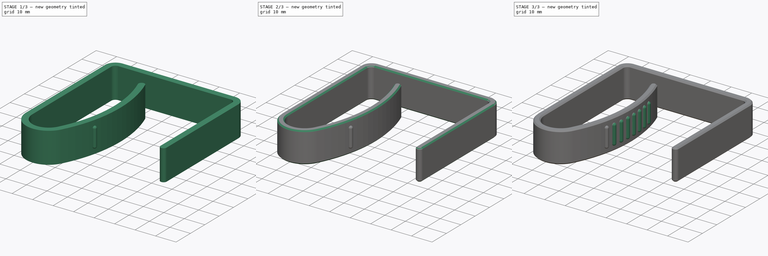
[diagram: build sequence overview — one tinted view per stage of 3, left to right]
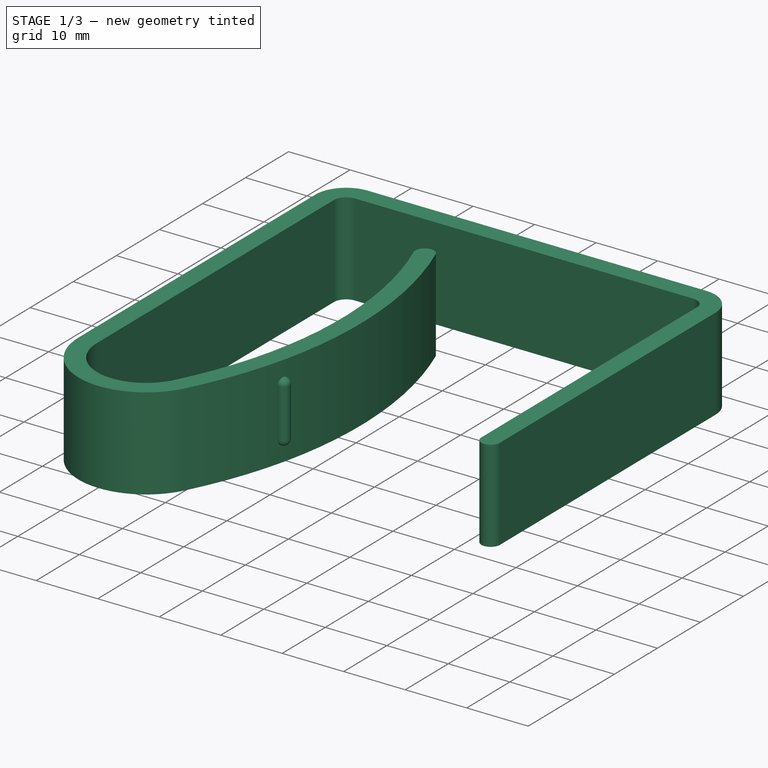
[diagram: stage 1 of 3 — iso view after this stage's code; geometry added in this stage tinted green]
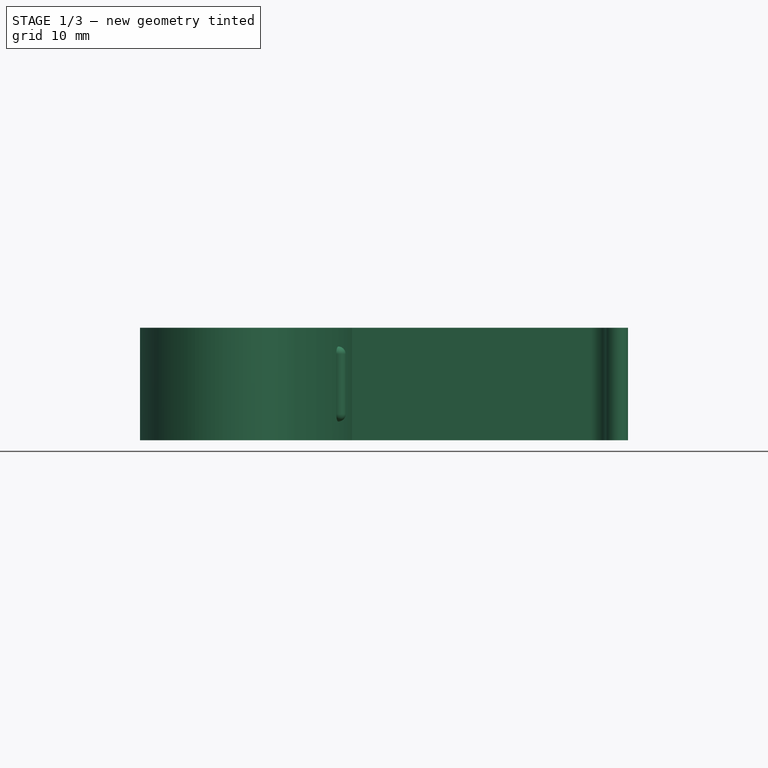
[diagram: stage 1 of 3 — front view after this stage's code; geometry added in this stage tinted green]
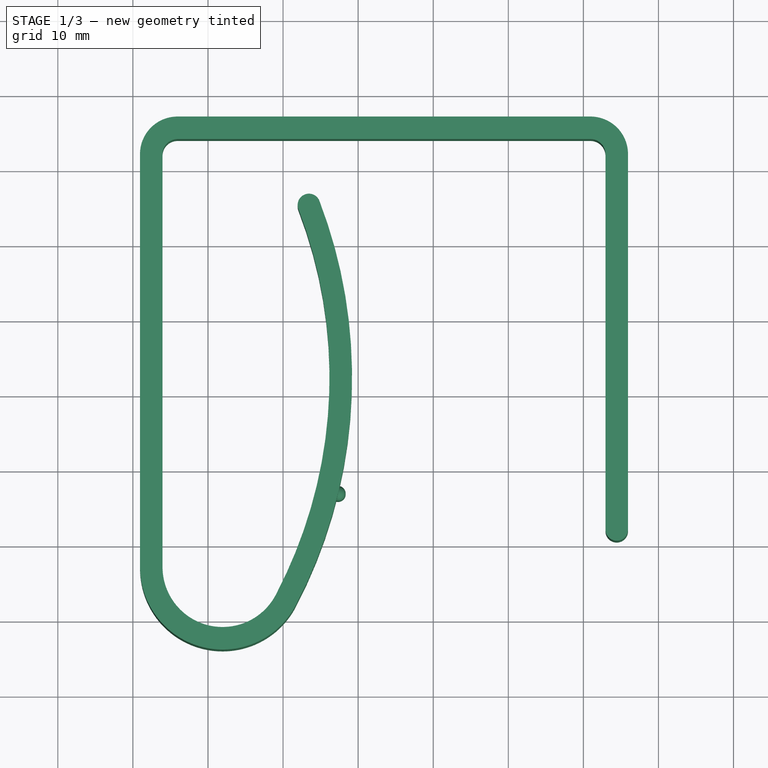
[diagram: stage 1 of 3 — top view after this stage's code; geometry added in this stage tinted green]
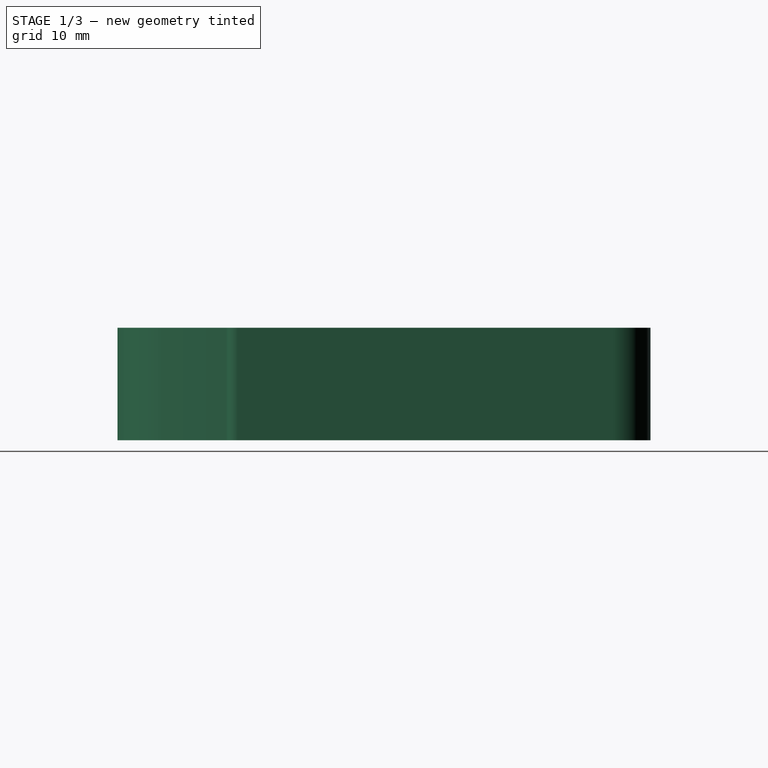
[diagram: stage 1 of 3 — right view after this stage's code; geometry added in this stage tinted green]
FCSTD DOCUMENT  (FreeCAD 1.1R38843 (Git))
Label: picnic table clips
License: All rights reserved
LicenseURL: http://en.wikipedia.org/wiki/All_rights_reserved
objects: Sketcher::SketchObject×3, PartDesign::Plane×1, PartDesign::Revolution×1, Part::FeaturePython×1, PartDesign::Pad×1, PartDesign::Chamfer×1, PartDesign::Body×1, Part::MultiFuse×1
note: 19 computed .brp shape members not serialized (recipe doc carries the construction recipe); baked Part::Feature solids carry a one-line shape summary decoded from their .brp

FEATURE [Sketcher::SketchObject] Sketch006
  ArcFitTolerance = 0
  AttachmentSupport = -> [XY_Plane002]
  FullyConstrained = false
  MakeInternals = false
  MapMode = 5
  sketch-geometry (20):
    g0: LineSegment StartX=-14.0554 StartY=67.0629 StartZ=0 EndX=40.9446 EndY=67.0629 EndZ=0
    g1: LineSegment StartX=45.9446 StartY=62.0629 StartZ=0 EndX=45.9446 EndY=12.0629 EndZ=0
    g2: LineSegment StartX=42.9446 StartY=12.0629 StartZ=0 EndX=42.9446 EndY=62.0629 EndZ=0
    g3: LineSegment StartX=40.9446 StartY=64.0629 StartZ=0 EndX=-14.0554 EndY=64.0629 EndZ=0
    g4: LineSegment StartX=-16.0554 StartY=62.0629 StartZ=0 EndX=-16.0554 EndY=7.06291 EndZ=0
    g5: LineSegment StartX=-19.0554 StartY=7.06291 StartZ=0 EndX=-19.0554 EndY=62.0629 EndZ=0
    g6: ArcOfCircle CenterX=-8.05537 CenterY=7.06291 CenterZ=0 NormalX=0 NormalY=0 NormalZ=1 AngleXU=0 Radius=11 StartAngle=3.14159 EndAngle=5.79961
    g7: ArcOfCircle CenterX=-8.05537 CenterY=7.06291 CenterZ=0 NormalX=0 NormalY=0 NormalZ=1 AngleXU=0 Radius=8 StartAngle=3.14159 EndAngle=5.79961
    g8: ArcOfCircle CenterX=-56.2632 CenterY=32.3802 CenterZ=0 NormalX=0 NormalY=0 NormalZ=1 AngleXU=0 Radius=62.4515 StartAngle=5.79961 EndAngle=6.64955
    g9: ArcOfCircle CenterX=-56.2632 CenterY=32.3802 CenterZ=0 NormalX=0 NormalY=0 NormalZ=1 AngleXU=0 Radius=65.4515 StartAngle=5.79961 EndAngle=6.64955
    g10: ArcOfCircle CenterX=3.44417 CenterY=55.2891 CenterZ=0 NormalX=0 NormalY=0 NormalZ=1 AngleXU=0 Radius=1.5 StartAngle=0.366364 EndAngle=3.50796
    g11: ArcOfCircle CenterX=-14.0554 CenterY=62.0629 CenterZ=0 NormalX=0 NormalY=0 NormalZ=1 AngleXU=0 Radius=2 StartAngle=1.5708 EndAngle=3.14159
    g12: GeomPoint [constr] X=-16.0554 Y=64.0629 Z=0
    g13: ArcOfCircle CenterX=-14.0554 CenterY=62.0629 CenterZ=0 NormalX=0 NormalY=0 NormalZ=1 AngleXU=0 Radius=5 StartAngle=1.5708 EndAngle=3.14159
    g14: GeomPoint [constr] X=-19.0554 Y=67.0629 Z=0
    g15: ArcOfCircle CenterX=40.9446 CenterY=62.0629 CenterZ=0 NormalX=0 NormalY=0 NormalZ=1 AngleXU=0 Radius=5 StartAngle=0 EndAngle=1.5708
    g16: GeomPoint [constr] X=45.9446 Y=67.0629 Z=0
    g17: ArcOfCircle CenterX=40.9446 CenterY=62.0629 CenterZ=0 NormalX=0 NormalY=0 NormalZ=1 AngleXU=0 Radius=2 StartAngle=1.1e-15 EndAngle=1.5708
    g18: GeomPoint [constr] X=42.9446 Y=64.0629 Z=0
    g19: ArcOfCircle CenterX=44.4446 CenterY=12.0629 CenterZ=0 NormalX=0 NormalY=0 NormalZ=1 AngleXU=0 Radius=1.5 StartAngle=3.14159 EndAngle=6.28319
  constraints (42):
    c: Horizontal(g0)
    c: Vertical(g1)
    c: Vertical(g2)
    c: Horizontal(g3)
    c: Vertical(g4)
    c: Vertical(g5)
    c: DistanceY(g18,g16) = 3
    c: DistanceX(g2,g1) = 3
    c: DistanceX(g14,g12) = 3
    c: DistanceX(g14,g16) = 65
    c: DistanceY(g1,g16) = 55
    c: Tangent(g6,g5) = 1.5708
    c: Tangent(g7,g4) = -1.5708
    c: Coincident(g7,g6)
    c: Tangent(g8,g7) = -1.5708
    c: Tangent(g9,g6) = -1.5708
    c: Coincident(g8,g9)
    c: Tangent(g10,g9) = -1.5708
    c: Tangent(g10,g8) = 1.5708
    c: Radius(g7) = 8
    c: DistanceY(g5,g14) = 60
    c: PointOnObject(g12,g3)
    c: PointOnObject(g12,g4)
    c: Tangent(g3,g11) = -1.5708
    c: Tangent(g4,g11) = -1.5708
    c: PointOnObject(g14,g0)
    c: Tangent(g0,g13) = 1.5708
    c: Tangent(g5,g13) = 1.5708
    c: PointOnObject(g16,g0)
    c: PointOnObject(g16,g1)
    c: Tangent(g0,g15) = 1.5708
    c: Tangent(g1,g15) = 1.5708
    c: PointOnObject(g18,g2)
    c: Tangent(g2,g17) = -1.5708
    c: Tangent(g3,g17) = -1.5708
    c: Coincident(g15,g17)
    c: Coincident(g11,g13)
    c: Equal(g11,g17)
    c: Radius(g11) = 2
    c: DistanceX(g9,g2) = 38.1
    c: Tangent(g19,g2) = 1.5708
    c: Tangent(g19,g1) = 1.5708
FEATURE [Sketcher::SketchObject] Sketch
  ArcFitTolerance = 1e-06
  AttachmentSupport = -> [XY_Plane002]
  ExternalGeometry = -> [Sketch006]
  FullyConstrained = false
  MakeInternals = false
  MapMode = 5
  sketch-geometry (1):
    g0: ArcOfCircle CenterX=-56.2632 CenterY=32.3802 CenterZ=0 NormalX=0 NormalY=0 NormalZ=1 AngleXU=0 Radius=65.4515 StartAngle=6.04456 EndAngle=6.48061
  constraints (3):
    c: Coincident(g0,g-3)
    c: PointOnObject(g0,g-3)
    c: PointOnObject(g0,g-3)
FEATURE [PartDesign::Plane] DatumPlane
  AttachmentSupport = -> [Sketch]
  Length = 129.68
  MapMode = 7
  Placement = pos=(7.33356,16.9095,0) rot=(0.985931,-0.118197,-0.118197;1.58496rad)
  ResizeMode = 0
  Width = 65.1357
FEATURE [Sketcher::SketchObject] Sketch007
  ArcFitTolerance = 1e-06
  AttachmentSupport = -> [DatumPlane]
  FullyConstrained = true
  MakeInternals = false
  MapMode = 5
  Placement = pos=(7.33356,16.9095,0) rot=(0.985931,-0.118197,-0.118197;1.58496rad)
  sketch-geometry (4):
    g0: LineSegment StartX=-1 StartY=4 StartZ=0 EndX=-1 EndY=-4 EndZ=0
    g1: ArcOfCircle CenterX=1e-16 CenterY=-4 CenterZ=0 NormalX=0 NormalY=0 NormalZ=1 AngleXU=0 Radius=1 StartAngle=3.14159 EndAngle=4.71239
    g2: LineSegment StartX=-1e-16 StartY=-5 StartZ=0 EndX=0 EndY=5 EndZ=0
    g3: ArcOfCircle CenterX=-1e-16 CenterY=4 CenterZ=0 NormalX=0 NormalY=0 NormalZ=1 AngleXU=0 Radius=1 StartAngle=1.5708 EndAngle=3.14159
  constraints (10):
    c: Vertical(g0)
    c: Tangent(g0,g1) = -1.5708
    c: Coincident(g1,g2)
    c: Perpendicular(g2,g3) = 1.5708
    c: PointOnObject(g2,g-2)
    c: Symmetric(g1,g3,g-1)
    c: Radius(g3) = 1
    c: DistanceY(g2,g2) = 10
    c: Tangent(g3,g0) = -1.5708
    c: Equal(g3,g1)
FEATURE [PartDesign::Revolution] Revolution
  Angle = 360
  Angle2 = 60
  Axis = (0,-1e-16,1)
  Base = (7.33356,16.9095,0)
  Placement = pos=(7.33356,16.9095,0) rot=(0.985931,-0.118197,-0.118197;1.58496rad)
  Profile = -> Sketch007
  ReferenceAxis = -> Sketch007 [V_Axis]
  Refine = true
  Suppressed = false
  Type = 0
FEATURE [PartDesign::Pad] Pad
  BaseFeature = -> Revolution
  Direction = (0,0,1)
  Length = 15
  Length2 = 10
  Midplane = true
  Placement = pos=(7.33356,16.9095,0) rot=(0.985931,-0.118197,-0.118197;1.58496rad)
  Profile = -> Sketch006
  ReferenceAxis = -> Sketch006 [N_Axis]
  Refine = true
  Suppressed = false
  Type = 0
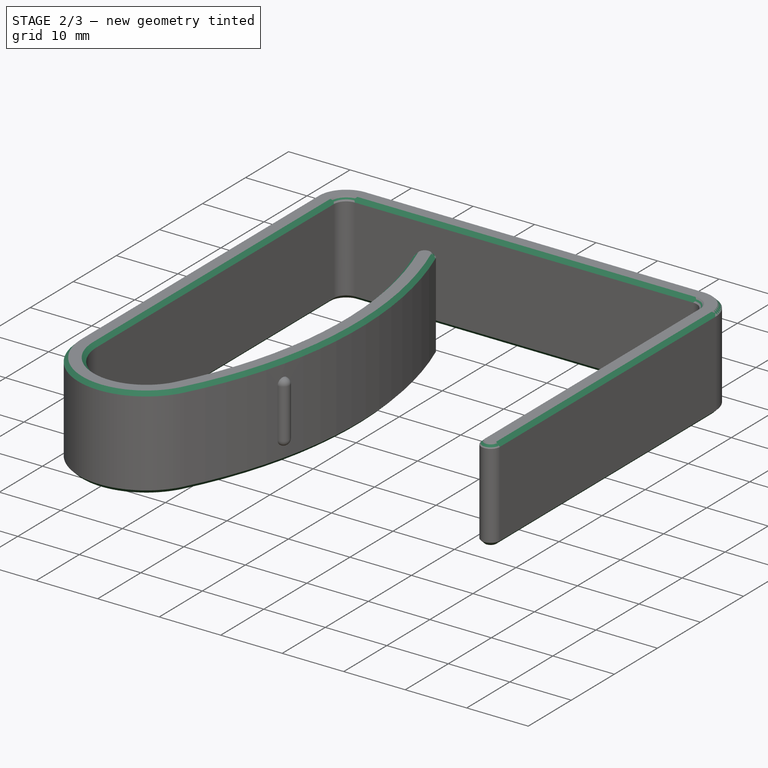
[diagram: stage 2 of 3 — iso view after this stage's code; geometry added in this stage tinted green]
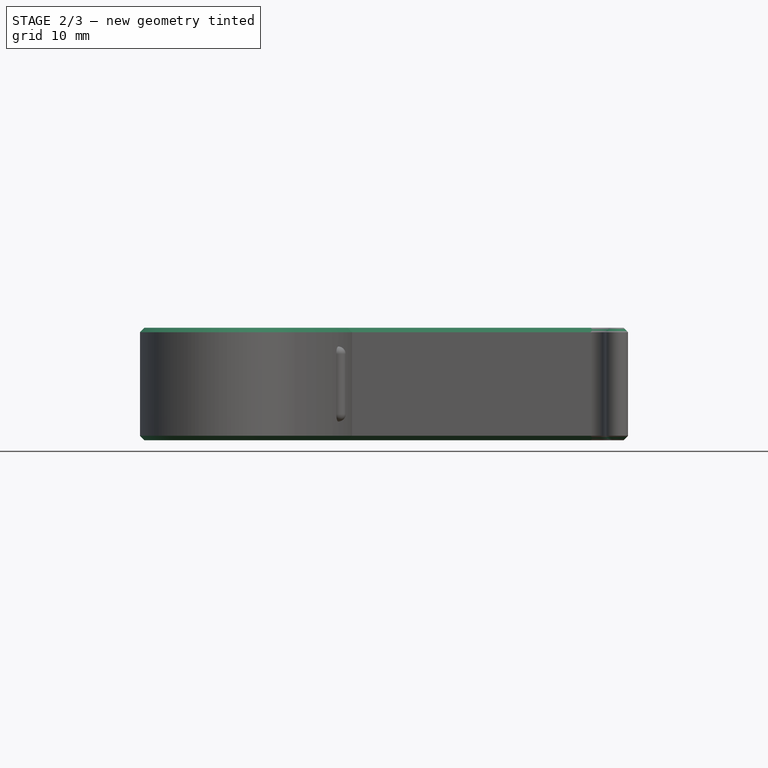
[diagram: stage 2 of 3 — front view after this stage's code; geometry added in this stage tinted green]
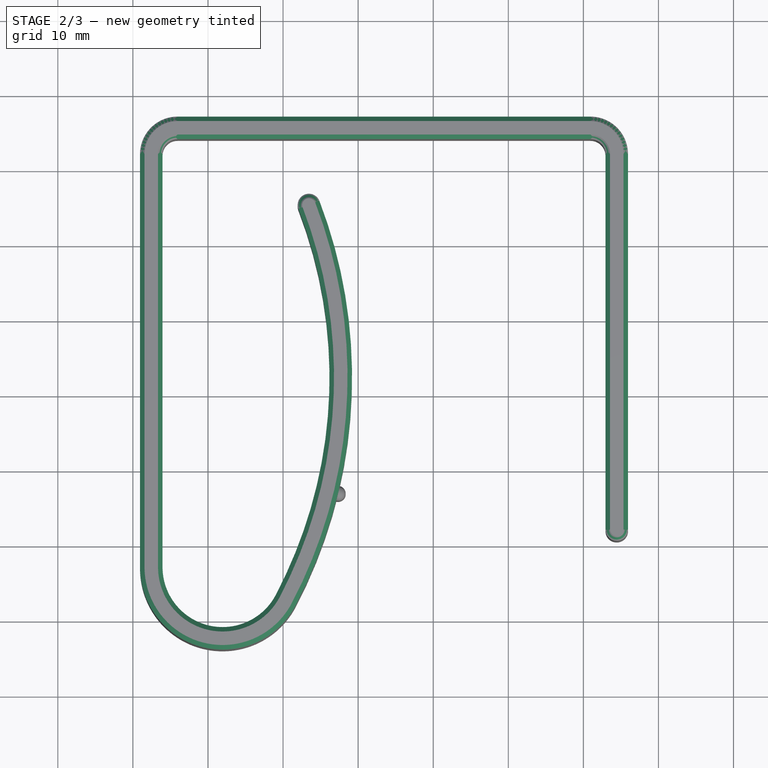
[diagram: stage 2 of 3 — top view after this stage's code; geometry added in this stage tinted green]
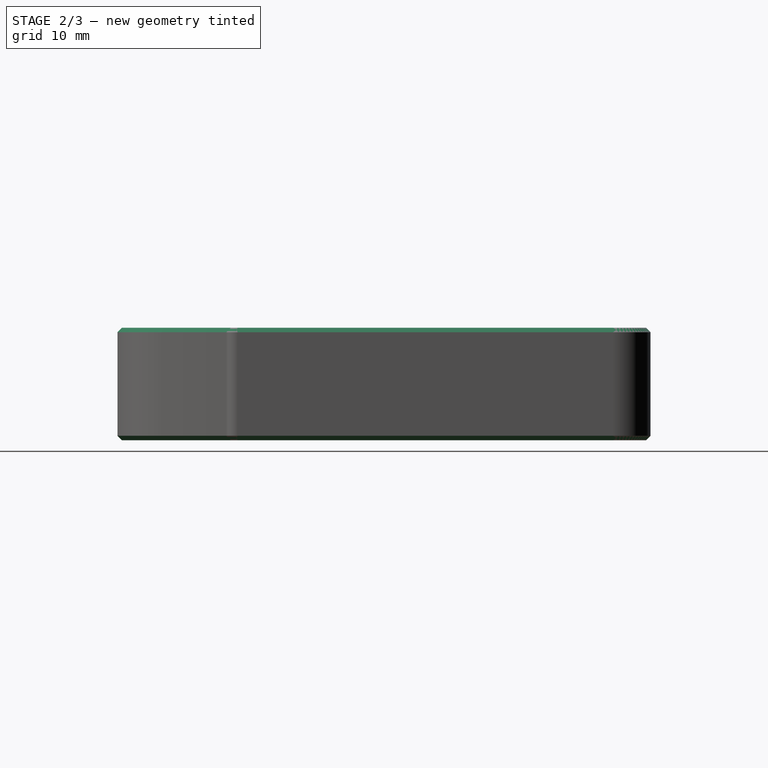
[diagram: stage 2 of 3 — right view after this stage's code; geometry added in this stage tinted green]
FEATURE [PartDesign::Chamfer] Chamfer
  Angle = 45
  Base = -> Pad [Face7,Face6]
  BaseFeature = -> Pad
  ChamferType = 0
  FlipDirection = false
  Placement = pos=(7.33356,16.9095,0) rot=(0.985931,-0.118197,-0.118197;1.58496rad)
  Refine = true
  Size = 0.6
  Size2 = 1
  SupportTransform = false
  Suppressed = false
  UseAllEdges = false
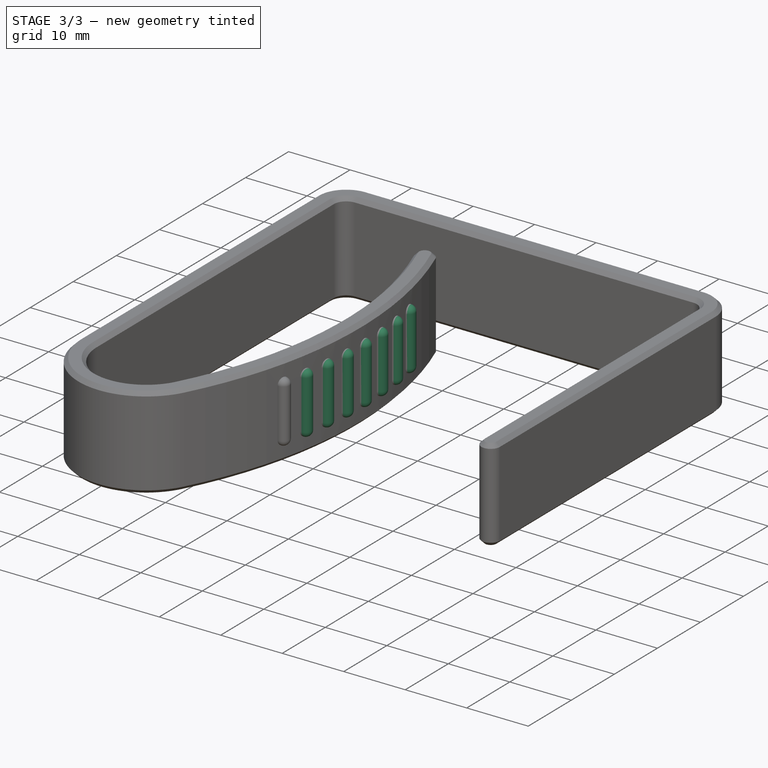
[diagram: stage 3 of 3 — iso view after this stage's code; geometry added in this stage tinted green]
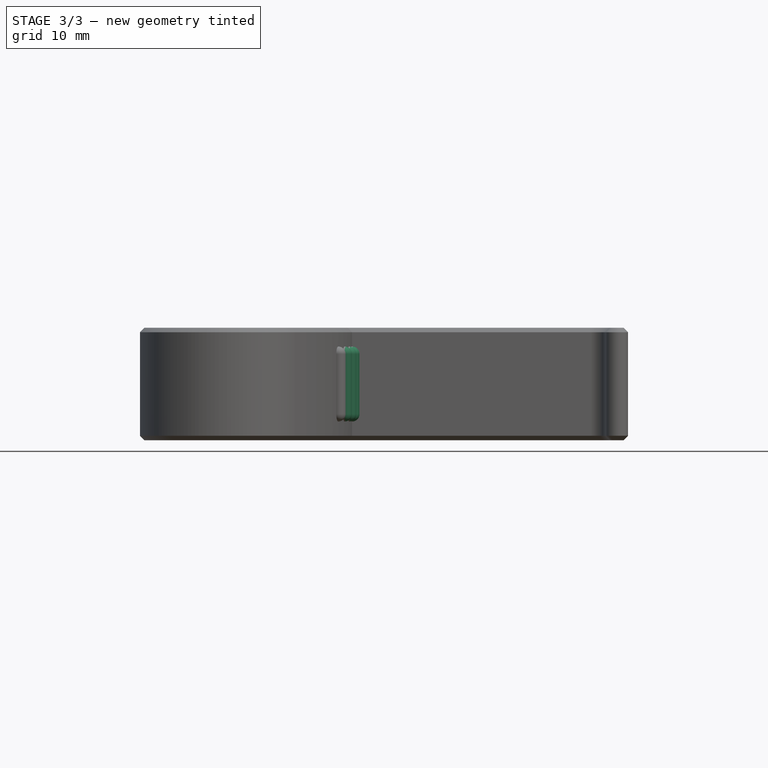
[diagram: stage 3 of 3 — front view after this stage's code; geometry added in this stage tinted green]
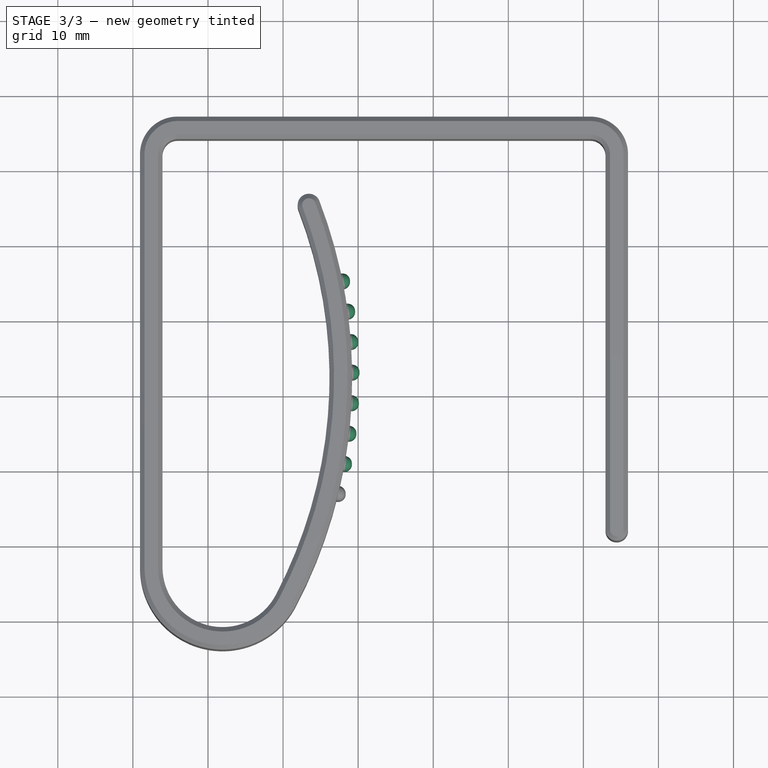
[diagram: stage 3 of 3 — top view after this stage's code; geometry added in this stage tinted green]
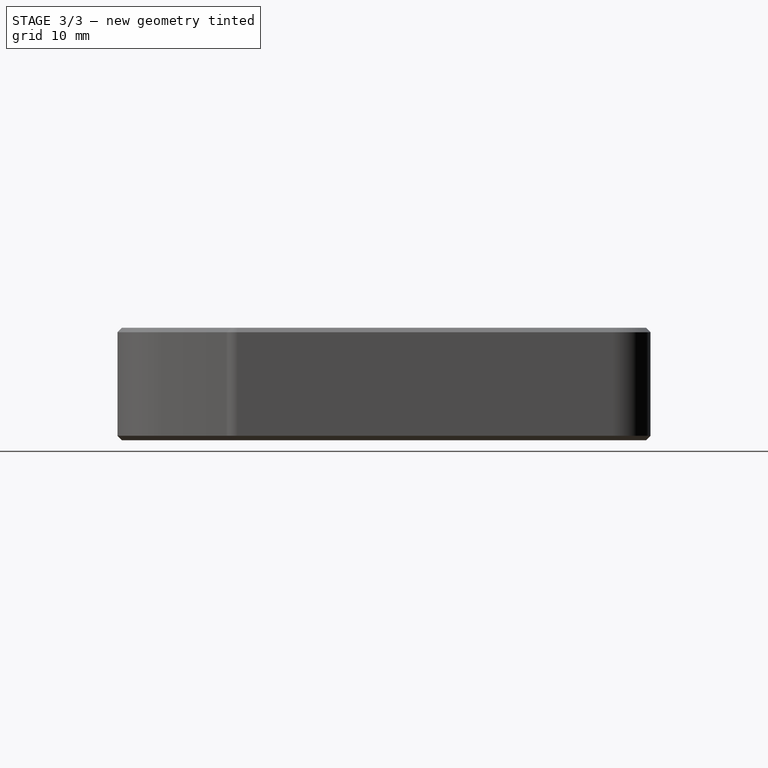
[diagram: stage 3 of 3 — right view after this stage's code; geometry added in this stage tinted green]
FEATURE [Part::FeaturePython] PathArray  label="teeth"  # WARN: FeaturePython — macro-defined, semantics opaque (R4)
  Align = false
  AlignMode = 0
  Base = -> Revolution
  Count = 8
  EndOffset = 0
  ExtraTranslation = (0,0,0)
  ForceVertical = false
  Fuse = false
  PathObject = -> Sketch
  StartOffset = 0
  TangentVector = (1,0,0)
  VerticalVector = (0,0,1)
FEATURE [PartDesign::Body] Body002  label="clip shape"
  AllowCompound = false
  Group = -> [Sketch006,Sketch,DatumPlane,Sketch007,Revolution,Pad,Chamfer]
  Origin = -> Origin002
  Tip = -> Chamfer
FEATURE [Part::MultiFuse] Fusion  label="clip"
  Refine = true
  Shapes = -> [PathArray,Body002]
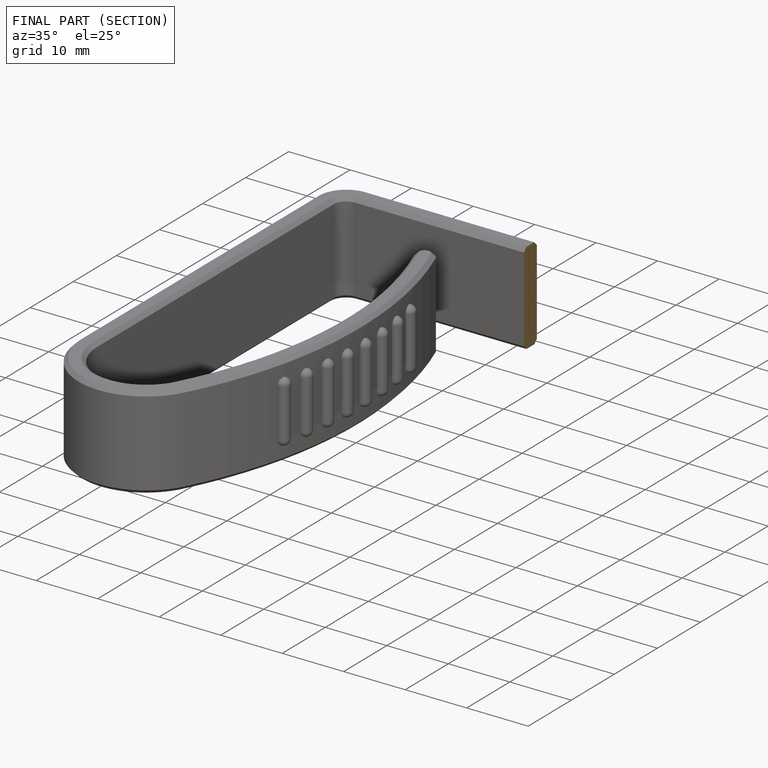
[diagram: finished part — half-section view (interior)]
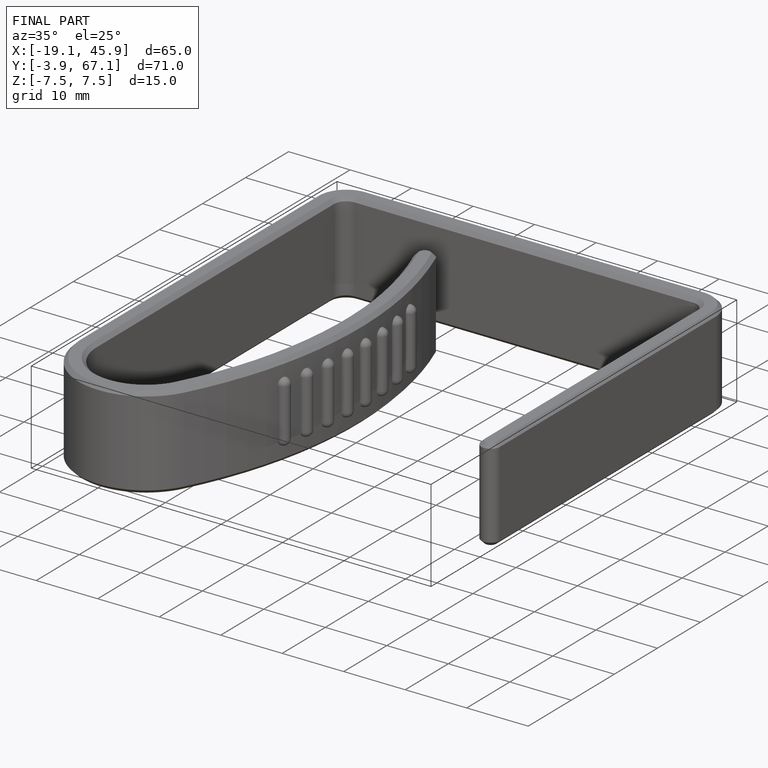
[diagram: finished part — iso view with bounding-box wireframe]
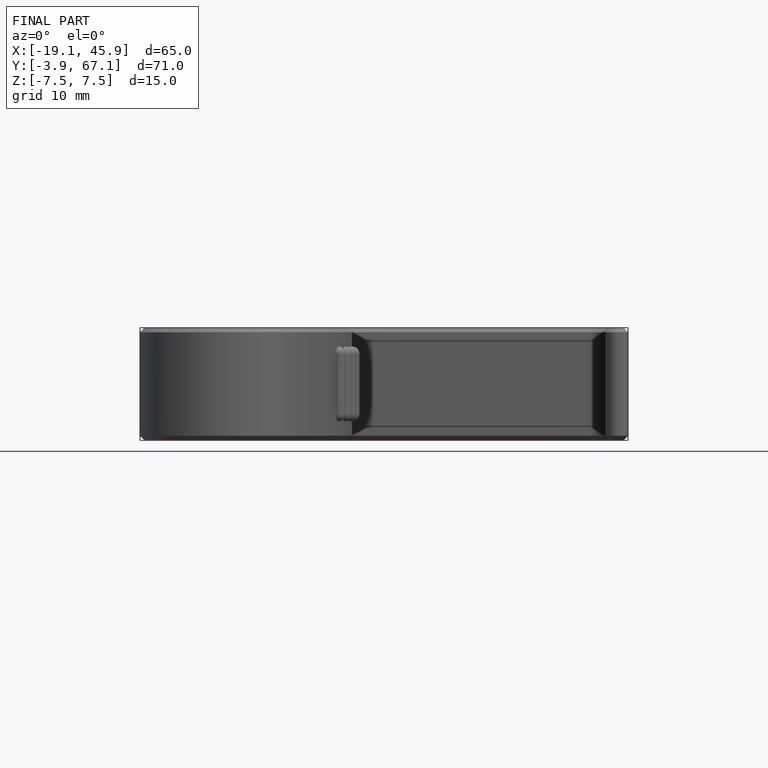
[diagram: finished part — front view with bounding-box wireframe]
